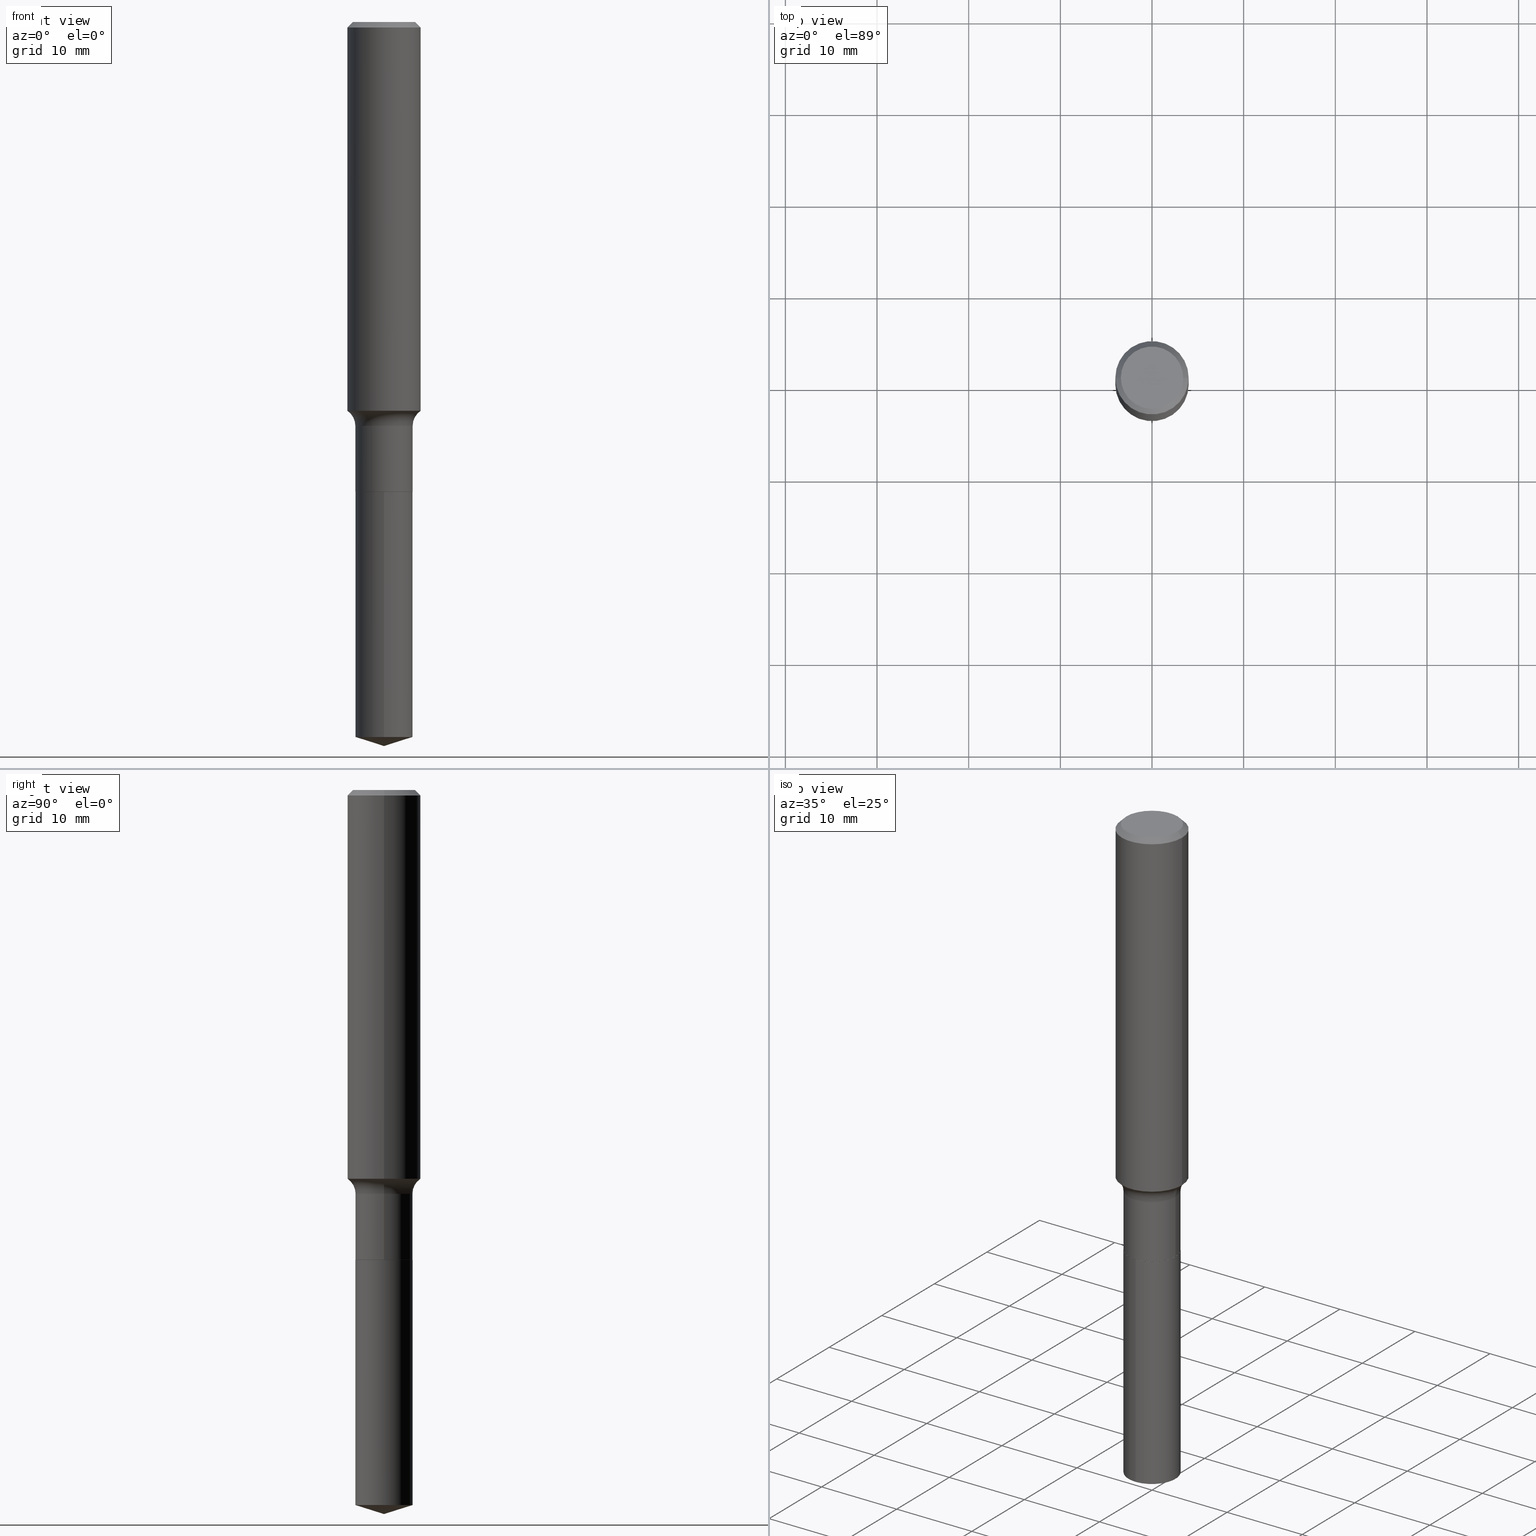
[diagram: canonical four-view strip — front | top / right | iso, engineering-drawing reading convention]
A machine part, canonical four-view strip (front | top / right | iso — engineering-drawing reading convention). The complete STEP part file that produces these views, byte-faithful:
ISO-10303-21;
HEADER;
FILE_DESCRIPTION (( 'STEP AP203' ),
    '1' );
FILE_NAME ('63174.STEP',
    '2024-04-19T14:57:04',
    ( '' ),
    ( '' ),
    'SwSTEP 2.0',
    'SolidWorks 2023',
    '' );
FILE_SCHEMA (( 'CONFIG_CONTROL_DESIGN' ));
ENDSEC;

DATA;
#1 = SECURITY_CLASSIFICATION_LEVEL ( 'unclassified' ) ;
#2 = DIRECTION ( 'NONE',  ( -2.445762720344131298E-29, 3.491060437038909906E-15, 1.000000000000000000 ) ) ;
#3 = ORIENTED_EDGE ( 'NONE', *, *, #134, .F. ) ;
#4 = AXIS2_PLACEMENT_3D ( 'NONE', #321, #326, #135 ) ;
#5 = AXIS2_PLACEMENT_3D ( 'NONE', #199, #396, #386 ) ;
#6 = LINE ( 'NONE', #317, #272 ) ;
#7 = DIRECTION ( 'NONE',  ( 1.000000000000000000, -6.982962677686267499E-15, 4.883557194083112901E-29 ) ) ;
#8 = FACE_OUTER_BOUND ( 'NONE', #40, .T. ) ;
#9 = PERSON_AND_ORGANIZATION_ROLE ( 'creator' ) ;
#10 = DIRECTION ( 'NONE',  ( 1.000000000000000000, -6.982962677686268288E-15, 0.000000000000000000 ) ) ;
#11 = ADVANCED_FACE ( 'NONE', ( #363 ), #353, .T. ) ;
#12 = DIRECTION ( 'NONE',  ( 1.000000000000000000, -6.982962677686265922E-15, 0.000000000000000000 ) ) ;
#13 = AXIS2_PLACEMENT_3D ( 'NONE', #312, #407, #461 ) ;
#14 = VECTOR ( 'NONE', #159, 39.37007874015748143 ) ;
#15 = EDGE_CURVE ( 'NONE', #373, #303, #200, .T. ) ;
#16 = DIRECTION ( 'NONE',  ( -1.000000000000000000, 6.982962677686265922E-15, 0.000000000000000000 ) ) ;
#17 = EDGE_CURVE ( 'NONE', #357, #298, #6, .T. ) ;
#18 = AXIS2_PLACEMENT_3D ( 'NONE', #393, #194, #434 ) ;
#19 = AXIS2_PLACEMENT_3D ( 'NONE', #115, #356, #325 ) ;
#20 = CARTESIAN_POINT ( 'NONE',  ( -0.2010499999999999510, -4.628126508245524798E-15, -1.734700000000000131 ) ) ;
#21 = ORIENTED_EDGE ( 'NONE', *, *, #136, .T. ) ;
#22 = CARTESIAN_POINT ( 'NONE',  ( -1.002970424325032604E-46, 1.431975951230895391E-32, 4.101342130344482109E-18 ) ) ;
#23 = EDGE_CURVE ( 'NONE', #424, #284, #442, .T. ) ;
#24 = DIRECTION ( 'NONE',  ( 1.000000000000000000, -6.982962677686265922E-15, 4.876176775795935793E-29 ) ) ;
#25 = ORIENTED_EDGE ( 'NONE', *, *, #254, .F. ) ;
#26 = CARTESIAN_POINT ( 'NONE',  ( -0.1230500000000000482, -5.675521581249995942E-15, -2.017199999999999882 ) ) ;
#27 = CIRCLE ( 'NONE', #138, 0.1230500000000000344 ) ;
#28 = CC_DESIGN_APPROVAL ( #473, ( #239 ) ) ;
#29 = ORIENTED_EDGE ( 'NONE', *, *, #433, .F. ) ;
#30 = LINE ( 'NONE', #470, #371 ) ;
#31 = DIRECTION ( 'NONE',  ( -2.445762720344131298E-29, 3.491060437038909906E-15, 1.000000000000000000 ) ) ;
#32 = CARTESIAN_POINT ( 'NONE',  ( 0.1225500000000000062, -7.900523973534267362E-15, -2.017700000000000049 ) ) ;
#33 = CALENDAR_DATE ( 2024, 19, 4 ) ;
#34 = AXIS2_PLACEMENT_3D ( 'NONE', #248, #469, #39 ) ;
#35 = CYLINDRICAL_SURFACE ( 'NONE', #436, 0.1230500000000000205 ) ;
#36 = ORIENTED_EDGE ( 'NONE', *, *, #163, .F. ) ;
#37 = CARTESIAN_POINT ( 'NONE',  ( 7.511328664010520263E-29, -1.072330095178513026E-14, -3.071402484028441737 ) ) ;
#38 = APPROVAL_ROLE ( '' ) ;
#39 = DIRECTION ( 'NONE',  ( 1.000000000000000000, -6.982962677686265922E-15, 0.000000000000000000 ) ) ;
#40 = EDGE_LOOP ( 'NONE', ( #468, #376, #415, #450 ) ) ;
#41 = ADVANCED_FACE ( 'NONE', ( #8 ), #147, .T. ) ;
#42 = ORIENTED_EDGE ( 'NONE', *, *, #15, .F. ) ;
#43 = VECTOR ( 'NONE', #391, 39.37007874015748143 ) ;
#44 = AXIS2_PLACEMENT_3D ( 'NONE', #78, #84, #233 ) ;
#45 = LOCAL_TIME ( 10, 57, 4.000000000000000000, #201 ) ;
#46 = APPLICATION_CONTEXT ( 'configuration controlled 3d designs of mechanical parts and assemblies' ) ;
#47 = EDGE_LOOP ( 'NONE', ( #475, #305 ) ) ;
#48 = CALENDAR_DATE ( 2024, 19, 4 ) ;
#49 = ORIENTED_EDGE ( 'NONE', *, *, #278, .T. ) ;
#50 = DIRECTION ( 'NONE',  ( -2.445468806185136597E-29, 3.491481338843145583E-15, 1.000000000000000000 ) ) ;
#51 = CYLINDRICAL_SURFACE ( 'NONE', #366, 0.1230500000000000066 ) ;
#52 = CIRCLE ( 'NONE', #399, 0.1230500000000000066 ) ;
#53 = CC_DESIGN_SECURITY_CLASSIFICATION ( #406, ( #467 ) ) ;
#54 = CARTESIAN_POINT ( 'NONE',  ( 5.777420054612416725E-31, -8.248624663016976606E-17, -0.02362500000000012507 ) ) ;
#55 = AXIS2_PLACEMENT_3D ( 'NONE', #188, #31, #336 ) ;
#56 = AXIS2_PLACEMENT_3D ( 'NONE', #37, #360, #425 ) ;
#57 = CARTESIAN_POINT ( 'NONE',  ( 0.1575000000000001676, -6.930555181286525277E-15, -1.669989896461217427 ) ) ;
#58 = CARTESIAN_POINT ( 'NONE',  ( 0.1225500000000000062, -7.900523973534267362E-15, -2.017700000000000049 ) ) ;
#59 = PRODUCT ( '63174', '63174', '', ( #358 ) ) ;
#60 = ORIENTED_EDGE ( 'NONE', *, *, #99, .F. ) ;
#61 = FACE_OUTER_BOUND ( 'NONE', #47, .T. ) ;
#62 = ORIENTED_EDGE ( 'NONE', *, *, #259, .T. ) ;
#63 = DIRECTION ( 'NONE',  ( -2.445468806185136597E-29, 3.491481338843145583E-15, 1.000000000000000000 ) ) ;
#64 = DIRECTION ( 'NONE',  ( 1.000000000000000000, -6.982962677686266711E-15, 4.876176775795935793E-29 ) ) ;
#65 = VECTOR ( 'NONE', #302, 39.37007874015748143 ) ;
#66 = ORIENTED_EDGE ( 'NONE', *, *, #219, .T. ) ;
#67 = DIRECTION ( 'NONE',  ( -1.000000000000000000, 7.105427357601005014E-15, 0.000000000000000000 ) ) ;
#68 = CONICAL_SURFACE ( 'NONE', #109, 0.1575000000000000011, 0.7853981633974453924 ) ;
#69 = APPROVAL_STATUS ( 'not_yet_approved' ) ;
#70 = ADVANCED_FACE ( 'NONE', ( #465 ), #129, .T. ) ;
#71 = ORIENTED_EDGE ( 'NONE', *, *, #219, .F. ) ;
#72 = PERSON_AND_ORGANIZATION ( #257, #378 ) ;
#73 = CARTESIAN_POINT ( 'NONE',  ( 4.934222410239750967E-29, -7.044761897383814758E-15, -2.017700000000000049 ) ) ;
#74 = ORIENTED_EDGE ( 'NONE', *, *, #211, .F. ) ;
#75 = PERSON_AND_ORGANIZATION ( #257, #378 ) ;
#76 = CARTESIAN_POINT ( 'NONE',  ( 8.743228363528783660E-16, 0.1230499999999929567, -2.017700000000000937 ) ) ;
#77 = ORIENTED_EDGE ( 'NONE', *, *, #410, .T. ) ;
#78 = CARTESIAN_POINT ( 'NONE',  ( 0.000000000000000000, 0.000000000000000000, 0.000000000000000000 ) ) ;
#79 = TOROIDAL_SURFACE ( 'NONE', #273, 0.2010499999999999510, 0.07799999999999993050 ) ;
#80 = PERSON_AND_ORGANIZATION_ROLE ( 'design_supplier' ) ;
#81 = CARTESIAN_POINT ( 'NONE',  ( 4.083908198440252692E-29, -5.830738559550937008E-15, -1.669989896461217427 ) ) ;
#82 = ADVANCED_FACE ( 'NONE', ( #443 ), #419, .F. ) ;
#83 = ORIENTED_EDGE ( 'NONE', *, *, #108, .T. ) ;
#84 = DIRECTION ( 'NONE',  ( 0.000000000000000000, 0.000000000000000000, 1.000000000000000000 ) ) ;
#85 = EDGE_CURVE ( 'NONE', #459, #357, #217, .T. ) ;
#86 = DATE_AND_TIME ( #343, #169 ) ;
#87 = ORIENTED_EDGE ( 'NONE', *, *, #316, .F. ) ;
#88 = LENGTH_MEASURE_WITH_UNIT ( LENGTH_MEASURE( 0.02539999999999999897 ), #244 );
#89 = DIRECTION ( 'NONE',  ( -2.445468806185136877E-29, 3.491481338843145188E-15, 1.000000000000000000 ) ) ;
#90 = CARTESIAN_POINT ( 'NONE',  ( -0.1575000000000000011, -1.837507594268394415E-15, -0.02362500000000012507 ) ) ;
#91 = CLOSED_SHELL ( 'NONE', ( #41, #311, #11, #440, #98, #170, #192, #368, #301, #341, #82, #490 ) ) ;
#92 = AXIS2_PLACEMENT_3D ( 'NONE', #224, #105, #479 ) ;
#93 = ORIENTED_EDGE ( 'NONE', *, *, #372, .T. ) ;
#94 = CARTESIAN_POINT ( 'NONE',  ( -8.592535574892198803E-16, -0.1230500000000107202, -3.071402484028441293 ) ) ;
#95 = DIRECTION ( 'NONE',  ( -6.982962677686266711E-15, -1.000000000000000000, 4.440224288767595162E-15 ) ) ;
#96 = CARTESIAN_POINT ( 'NONE',  ( -0.1230500000000000066, -5.675521581249995942E-15, -1.734700000000000131 ) ) ;
#97 = VECTOR ( 'NONE', #297, 39.37007874015748143 ) ;
#98 = ADVANCED_FACE ( 'NONE', ( #412 ), #375, .T. ) ;
#99 = EDGE_CURVE ( 'NONE', #131, #161, #320, .T. ) ;
#100 = CIRCLE ( 'NONE', #445, 0.1225500000000000062 ) ;
#101 = CIRCLE ( 'NONE', #167, 0.1575000000000000011 ) ;
#102 = CARTESIAN_POINT ( 'NONE',  ( 0.000000000000000000, 0.000000000000000000, 0.000000000000000000 ) ) ;
#103 = APPROVAL ( #225, 'UNSPECIFIED' ) ;
#104 = ORIENTED_EDGE ( 'NONE', *, *, #15, .T. ) ;
#105 = DIRECTION ( 'NONE',  ( 2.445762720344130738E-29, -3.491060437038910301E-15, -1.000000000000000000 ) ) ;
#106 = LINE ( 'NONE', #185, #346 ) ;
#107 = CYLINDRICAL_SURFACE ( 'NONE', #388, 0.1575000000000000844 ) ;
#108 = EDGE_CURVE ( 'NONE', #424, #161, #478, .T. ) ;
#109 = AXIS2_PLACEMENT_3D ( 'NONE', #54, #292, #411 ) ;
#110 = ORIENTED_EDGE ( 'NONE', *, *, #405, .F. ) ;
#111 = FACE_OUTER_BOUND ( 'NONE', #127, .T. ) ;
#112 = DATE_AND_TIME ( #33, #150 ) ;
#113 = EDGE_LOOP ( 'NONE', ( #296, #488, #455, #413 ) ) ;
#114 = APPROVAL_ROLE ( '' ) ;
#115 = CARTESIAN_POINT ( 'NONE',  ( 4.932999675836657605E-29, -7.043016156714394043E-15, -2.017199999999999882 ) ) ;
#116 = VERTEX_POINT ( 'NONE', #448 ) ;
#117 = EDGE_CURVE ( 'NONE', #338, #284, #106, .T. ) ;
#118 = APPROVAL_DATE_TIME ( #86, #486 ) ;
#119 = CARTESIAN_POINT ( 'NONE',  ( 5.777420054612416725E-31, -8.248624663016976606E-17, -0.02362500000000012507 ) ) ;
#120 = ORIENTED_EDGE ( 'NONE', *, *, #433, .T. ) ;
#121 = CIRCLE ( 'NONE', #56, 0.1230500000000000066 ) ;
#122 = CC_DESIGN_PERSON_AND_ORGANIZATION_ASSIGNMENT ( #237, #463, ( #59 ) ) ;
#123 = APPROVAL_PERSON_ORGANIZATION ( #418, #103, #38 ) ;
#124 = CARTESIAN_POINT ( 'NONE',  ( 4.242154738089357054E-29, -6.056672678491205084E-15, -1.734700000000000131 ) ) ;
#125 = ORIENTED_EDGE ( 'NONE', *, *, #278, .F. ) ;
#126 = APPLICATION_PROTOCOL_DEFINITION ( 'international standard', 'config_control_design', 1994, #46 ) ;
#127 = EDGE_LOOP ( 'NONE', ( #152, #462 ) ) ;
#128 = CALENDAR_DATE ( 2024, 19, 4 ) ;
#129 = CYLINDRICAL_SURFACE ( 'NONE', #4, 0.1230500000000000066 ) ;
#130 = AXIS2_PLACEMENT_3D ( 'NONE', #22, #334, #476 ) ;
#131 = VERTEX_POINT ( 'NONE', #482 ) ;
#132 = DIRECTION ( 'NONE',  ( 1.000000000000000000, -6.982962677686263555E-15, 0.000000000000000000 ) ) ;
#133 = FACE_OUTER_BOUND ( 'NONE', #385, .T. ) ;
#134 = EDGE_CURVE ( 'NONE', #333, #222, #414, .T. ) ;
#135 = DIRECTION ( 'NONE',  ( -6.982962677686266711E-15, -1.000000000000000000, 4.440224288767595162E-15 ) ) ;
#136 = EDGE_CURVE ( 'NONE', #243, #459, #100, .T. ) ;
#137 = AXIS2_PLACEMENT_3D ( 'NONE', #179, #383, #324 ) ;
#138 = AXIS2_PLACEMENT_3D ( 'NONE', #140, #63, #377 ) ;
#139 = ORIENTED_EDGE ( 'NONE', *, *, #253, .F. ) ;
#140 = CARTESIAN_POINT ( 'NONE',  ( 4.932999675836657605E-29, -7.043016156714394043E-15, -2.017199999999999882 ) ) ;
#141 = CARTESIAN_POINT ( 'NONE',  ( 4.934222410239750967E-29, -7.044761897383814758E-15, -2.017700000000000049 ) ) ;
#142 = ORIENTED_EDGE ( 'NONE', *, *, #331, .F. ) ;
#143 = PLANE ( 'NONE',  #328 ) ;
#144 = PRODUCT_RELATED_PRODUCT_CATEGORY ( 'detail', '', ( #59 ) ) ;
#145 = ORIENTED_EDGE ( 'NONE', *, *, #422, .T. ) ;
#146 = CARTESIAN_POINT ( 'NONE',  ( 0.1575000000000000844, -1.099816621735587677E-15, 7.679978421878603638E-30 ) ) ;
#147 = CONICAL_SURFACE ( 'NONE', #250, 0.1225500000000000062, 0.7853981633973118326 ) ;
#148 = CIRCLE ( 'NONE', #485, 0.1575000000000001954 ) ;
#149 = FACE_OUTER_BOUND ( 'NONE', #483, .T. ) ;
#150 = LOCAL_TIME ( 10, 57, 4.000000000000000000, #430 ) ;
#151 = CARTESIAN_POINT ( 'NONE',  ( 4.934222410239750967E-29, -7.044761897383814758E-15, -2.017700000000000049 ) ) ;
#152 = ORIENTED_EDGE ( 'NONE', *, *, #99, .T. ) ;
#153 = DIRECTION ( 'NONE',  ( 1.000000000000000000, -6.982962677686268288E-15, 0.000000000000000000 ) ) ;
#154 = DATE_AND_TIME ( #277, #286 ) ;
#155 = LINE ( 'NONE', #308, #203 ) ;
#156 = ORIENTED_EDGE ( 'NONE', *, *, #316, .T. ) ;
#157 = CARTESIAN_POINT ( 'NONE',  ( -0.1575000000000000844, 1.119104808822158392E-15, -7.747322767151481189E-30 ) ) ;
#158 = ORIENTED_EDGE ( 'NONE', *, *, #259, .F. ) ;
#159 = DIRECTION ( 'NONE',  ( 0.7071067811865454633, -7.319954787623248157E-15, -0.7071067811865495711 ) ) ;
#160 =( GEOMETRIC_REPRESENTATION_CONTEXT ( 3 ) GLOBAL_UNCERTAINTY_ASSIGNED_CONTEXT ( ( #208 ) ) GLOBAL_UNIT_ASSIGNED_CONTEXT ( ( #306, #162, #283 ) ) REPRESENTATION_CONTEXT ( 'NONE', 'WORKASPACE' ) );
#161 = VERTEX_POINT ( 'NONE', #76 ) ;
#162 =( NAMED_UNIT ( * ) PLANE_ANGLE_UNIT ( ) SI_UNIT ( $, .RADIAN. ) );
#163 = EDGE_CURVE ( 'NONE', #333, #298, #230, .T. ) ;
#164 = ORIENTED_EDGE ( 'NONE', *, *, #355, .F. ) ;
#165 = COORDINATED_UNIVERSAL_TIME_OFFSET ( 5, 0, .BEHIND. ) ;
#166 = EDGE_LOOP ( 'NONE', ( #240, #104, #274, #223 ) ) ;
#167 = AXIS2_PLACEMENT_3D ( 'NONE', #119, #271, #428 ) ;
#168 = DIRECTION ( 'NONE',  ( -2.445762720344131298E-29, 3.491060437038909906E-15, 1.000000000000000000 ) ) ;
#169 = LOCAL_TIME ( 10, 57, 4.000000000000000000, #351 ) ;
#170 = ADVANCED_FACE ( 'NONE', ( #133 ), #35, .T. ) ;
#171 = CARTESIAN_POINT ( 'NONE',  ( 7.606811212814317629E-29, -1.085789617127841761E-14, -3.110199999999999854 ) ) ;
#172 = DIRECTION ( 'NONE',  ( -6.982962677686266711E-15, -1.000000000000000000, 3.500519750498693388E-15 ) ) ;
#173 = PRODUCT_DEFINITION_SHAPE ( 'NONE', 'NONE',  #239 ) ;
#174 = CONICAL_SURFACE ( 'NONE', #202, 0.1575000000000000011, 0.7853981633974453924 ) ;
#175 = DESIGN_CONTEXT ( 'detailed design', #46, 'design' ) ;
#176 = ADVANCED_FACE ( 'NONE', ( #487 ), #245, .T. ) ;
#177 = CARTESIAN_POINT ( 'NONE',  ( -5.014852121625163022E-47, 7.159879756154476955E-33, 2.050671065172241055E-18 ) ) ;
#178 = EDGE_LOOP ( 'NONE', ( #62, #66, #190, #3 ) ) ;
#179 = CARTESIAN_POINT ( 'NONE',  ( -1.002970424325032604E-46, 1.431975951230895391E-32, 4.101342130344482109E-18 ) ) ;
#180 = CIRCLE ( 'NONE', #19, 0.1230500000000000344 ) ;
#181 = CARTESIAN_POINT ( 'NONE',  ( 0.000000000000000000, 0.000000000000000000, 0.000000000000000000 ) ) ;
#182 = EDGE_LOOP ( 'NONE', ( #87, #158, #226, #246 ) ) ;
#183 = FACE_OUTER_BOUND ( 'NONE', #431, .T. ) ;
#184 = VERTEX_POINT ( 'NONE', #439 ) ;
#185 = CARTESIAN_POINT ( 'NONE',  ( 7.605625151617110741E-29, -1.085959467841923256E-14, -3.110199999999999854 ) ) ;
#186 = CARTESIAN_POINT ( 'NONE',  ( -0.1225500000000000062, -6.173991774709812430E-15, -2.017700000000000049 ) ) ;
#187 = COORDINATED_UNIVERSAL_TIME_OFFSET ( 5, 0, .BEHIND. ) ;
#188 = CARTESIAN_POINT ( 'NONE',  ( 4.934222410239750967E-29, -7.044761897383814758E-15, -2.017700000000000049 ) ) ;
#189 = CIRCLE ( 'NONE', #290, 0.1225500000000000062 ) ;
#190 = ORIENTED_EDGE ( 'NONE', *, *, #480, .F. ) ;
#191 = DIRECTION ( 'NONE',  ( 1.000000000000000000, -6.982962677686263555E-15, 0.000000000000000000 ) ) ;
#192 = ADVANCED_FACE ( 'NONE', ( #352 ), #472, .F. ) ;
#193 = DIRECTION ( 'NONE',  ( 1.000000000000000000, -6.982962677686266711E-15, 4.876176775795935793E-29 ) ) ;
#194 = DIRECTION ( 'NONE',  ( -2.445468806185136597E-29, 3.491481338843145583E-15, 1.000000000000000000 ) ) ;
#195 = APPLICATION_PROTOCOL_DEFINITION ( 'international standard', 'config_control_design', 1994, #238 ) ;
#196 = PERSON_AND_ORGANIZATION_ROLE ( 'classification_officer' ) ;
#197 = CARTESIAN_POINT ( 'NONE',  ( 4.242154738089357054E-29, -6.056672678491205084E-15, -1.734700000000000131 ) ) ;
#198 = ORIENTED_EDGE ( 'NONE', *, *, #369, .F. ) ;
#199 = CARTESIAN_POINT ( 'NONE',  ( 5.777420054612416725E-31, -8.248624663016976606E-17, -0.02362500000000012507 ) ) ;
#200 = LINE ( 'NONE', #491, #370 ) ;
#201 = COORDINATED_UNIVERSAL_TIME_OFFSET ( 5, 0, .BEHIND. ) ;
#202 = AXIS2_PLACEMENT_3D ( 'NONE', #288, #212, #16 ) ;
#203 = VECTOR ( 'NONE', #458, 39.37007874015748143 ) ;
#204 = DIRECTION ( 'NONE',  ( -2.445762720344131298E-29, 3.491060437038909906E-15, 1.000000000000000000 ) ) ;
#205 = PERSON_AND_ORGANIZATION ( #257, #378 ) ;
#206 = EDGE_LOOP ( 'NONE', ( #359, #279, #464, #74 ) ) ;
#207 = FACE_OUTER_BOUND ( 'NONE', #421, .T. ) ;
#208 = UNCERTAINTY_MEASURE_WITH_UNIT (LENGTH_MEASURE( 1.000000000000000082E-05 ), #306, 'distance_accuracy_value', 'NONE');
#209 = CIRCLE ( 'NONE', #408, 0.1230500000000000066 ) ;
#210 = LINE ( 'NONE', #157, #43 ) ;
#211 = EDGE_CURVE ( 'NONE', #161, #131, #52, .T. ) ;
#212 = DIRECTION ( 'NONE',  ( 2.445468806185136597E-29, -3.491481338843145583E-15, -1.000000000000000000 ) ) ;
#213 = VECTOR ( 'NONE', #258, 39.37007874015748143 ) ;
#214 = CONICAL_SURFACE ( 'NONE', #285, 124.8659371009154597, 1.265363707695892570 ) ;
#215 = DIRECTION ( 'NONE',  ( 1.000000000000000000, -6.982962677686268288E-15, 0.000000000000000000 ) ) ;
#216 = DIRECTION ( 'NONE',  ( 2.438088387897960049E-29, -3.491481338843145188E-15, -1.000000000000000000 ) ) ;
#217 = LINE ( 'NONE', #58, #213 ) ;
#218 = DIRECTION ( 'NONE',  ( -1.000000000000000000, 6.982962677686265922E-15, -4.876176775795935793E-29 ) ) ;
#219 = EDGE_CURVE ( 'NONE', #116, #429, #210, .T. ) ;
#220 = CC_DESIGN_PERSON_AND_ORGANIZATION_ASSIGNMENT ( #205, #9, ( #239 ) ) ;
#221 = APPROVAL_PERSON_ORGANIZATION ( #266, #486, #114 ) ;
#222 = VERTEX_POINT ( 'NONE', #404 ) ;
#223 = ORIENTED_EDGE ( 'NONE', *, *, #17, .F. ) ;
#224 = CARTESIAN_POINT ( 'NONE',  ( 4.934222410239750967E-29, -7.044761897383814758E-15, -2.017700000000000049 ) ) ;
#225 = APPROVAL_STATUS ( 'not_yet_approved' ) ;
#226 = ORIENTED_EDGE ( 'NONE', *, *, #163, .T. ) ;
#227 = DIRECTION ( 'NONE',  ( -6.982962677686266711E-15, -1.000000000000000000, 3.500519750498693388E-15 ) ) ;
#228 = CARTESIAN_POINT ( 'NONE',  ( 0.000000000000000000, 0.000000000000000000, 0.000000000000000000 ) ) ;
#229 = EDGE_CURVE ( 'NONE', #284, #131, #155, .T. ) ;
#230 = CIRCLE ( 'NONE', #13, 0.07799999999999993050 ) ;
#231 = VECTOR ( 'NONE', #456, 39.37007874015748143 ) ;
#232 = ORIENTED_EDGE ( 'NONE', *, *, #17, .T. ) ;
#233 = DIRECTION ( 'NONE',  ( 1.000000000000000000, 0.000000000000000000, 0.000000000000000000 ) ) ;
#234 = DIRECTION ( 'NONE',  ( -2.445468806185136597E-29, 3.491481338843145583E-15, 1.000000000000000000 ) ) ;
#235 = ADVANCED_BREP_SHAPE_REPRESENTATION ( '63174', ( #342, #337, #44 ), #160 ) ;
#236 = VERTEX_POINT ( 'NONE', #454 ) ;
#237 = PERSON_AND_ORGANIZATION ( #257, #378 ) ;
#238 = APPLICATION_CONTEXT ( 'configuration controlled 3d designs of mechanical parts and assemblies' ) ;
#239 = PRODUCT_DEFINITION ( 'UNKNOWN', '', #467, #175 ) ;
#240 = ORIENTED_EDGE ( 'NONE', *, *, #242, .T. ) ;
#241 = APPROVAL_ROLE ( '' ) ;
#242 = EDGE_CURVE ( 'NONE', #357, #373, #180, .T. ) ;
#243 = VERTEX_POINT ( 'NONE', #394 ) ;
#244 =( LENGTH_UNIT ( ) NAMED_UNIT ( * ) SI_UNIT ( $, .METRE. ) );
#245 = CONICAL_SURFACE ( 'NONE', #417, 124.8659371009154597, 1.265363707695892570 ) ;
#246 = ORIENTED_EDGE ( 'NONE', *, *, #281, .T. ) ;
#247 = DIRECTION ( 'NONE',  ( 1.000000000000000000, -6.982962677686268288E-15, 0.000000000000000000 ) ) ;
#248 = CARTESIAN_POINT ( 'NONE',  ( 4.083908198440252692E-29, -5.830738559550937008E-15, -1.669989896461217427 ) ) ;
#249 = DIMENSIONAL_EXPONENTS ( 1.000000000000000000, 0.000000000000000000, 0.000000000000000000, 0.000000000000000000, 0.000000000000000000, 0.000000000000000000, 0.000000000000000000 ) ;
#250 = AXIS2_PLACEMENT_3D ( 'NONE', #309, #319, #10 ) ;
#251 = CIRCLE ( 'NONE', #294, 0.1230500000000000066 ) ;
#252 = FACE_OUTER_BOUND ( 'NONE', #299, .T. ) ;
#253 = EDGE_CURVE ( 'NONE', #338, #424, #287, .T. ) ;
#254 = EDGE_CURVE ( 'NONE', #429, #222, #101, .T. ) ;
#255 = AXIS2_PLACEMENT_3D ( 'NONE', #181, #381, #64 ) ;
#256 = PLANE ( 'NONE',  #92 ) ;
#257 = PERSON ( 'UNSPECIFIED', 'UNSPECIFIED', 'UNSPECIFIED', ('UNSPECIFIED'), ('UNSPECIFIED'), ('UNSPECIFIED') ) ;
#258 = DIRECTION ( 'NONE',  ( 0.7071067811864509833, -2.468850131081245741E-15, 0.7071067811866440511 ) ) ;
#259 = EDGE_CURVE ( 'NONE', #333, #116, #148, .T. ) ;
#260 = CC_DESIGN_PERSON_AND_ORGANIZATION_ASSIGNMENT ( #307, #384, ( #467 ) ) ;
#261 = DIRECTION ( 'NONE',  ( -6.659769872151633666E-15, -0.9537169507482269326, 0.3007057995042729526 ) ) ;
#262 = DIRECTION ( 'NONE',  ( 7.105427357601001859E-15, 1.000000000000000000, -3.491481338843145583E-15 ) ) ;
#263 = CIRCLE ( 'NONE', #34, 0.1575000000000001954 ) ;
#264 = DATE_AND_TIME ( #48, #390 ) ;
#265 = ORIENTED_EDGE ( 'NONE', *, *, #410, .F. ) ;
#266 = PERSON_AND_ORGANIZATION ( #257, #378 ) ;
#267 = CARTESIAN_POINT ( 'NONE',  ( 8.743228363528525308E-16, 0.1230499999999929567, -2.017700000000000937 ) ) ;
#268 = CARTESIAN_POINT ( 'NONE',  ( 7.606821613170985544E-29, -1.085789617127841761E-14, -3.110199999999999854 ) ) ;
#269 = ORIENTED_EDGE ( 'NONE', *, *, #253, .T. ) ;
#270 = CARTESIAN_POINT ( 'NONE',  ( 0.1575000000000000011, -1.163014681279185964E-15, -0.02362500000000012507 ) ) ;
#271 = DIRECTION ( 'NONE',  ( -2.445468806185136597E-29, 3.491481338843145583E-15, 1.000000000000000000 ) ) ;
#272 = VECTOR ( 'NONE', #282, 39.37007874015748143 ) ;
#273 = AXIS2_PLACEMENT_3D ( 'NONE', #354, #345, #7 ) ;
#274 = ORIENTED_EDGE ( 'NONE', *, *, #281, .F. ) ;
#275 = DIRECTION ( 'NONE',  ( -2.445762720344131298E-29, 3.491060437038909906E-15, 1.000000000000000000 ) ) ;
#276 = APPROVAL_PERSON_ORGANIZATION ( #280, #473, #241 ) ;
#277 = CALENDAR_DATE ( 2024, 19, 4 ) ;
#278 = EDGE_CURVE ( 'NONE', #116, #333, #263, .T. ) ;
#279 = ORIENTED_EDGE ( 'NONE', *, *, #23, .T. ) ;
#280 = PERSON_AND_ORGANIZATION ( #257, #378 ) ;
#281 = EDGE_CURVE ( 'NONE', #298, #303, #209, .T. ) ;
#282 = DIRECTION ( 'NONE',  ( -2.445468806185136877E-29, 3.491481338843145188E-15, 1.000000000000000000 ) ) ;
#283 =( NAMED_UNIT ( * ) SI_UNIT ( $, .STERADIAN. ) SOLID_ANGLE_UNIT ( ) );
#284 = VERTEX_POINT ( 'NONE', #94 ) ;
#285 = AXIS2_PLACEMENT_3D ( 'NONE', #339, #275, #227 ) ;
#286 = LOCAL_TIME ( 10, 57, 4.000000000000000000, #187 ) ;
#287 = LINE ( 'NONE', #268, #466 ) ;
#288 = CARTESIAN_POINT ( 'NONE',  ( 5.777420054612416725E-31, -8.248624663016976606E-17, -0.02362500000000012507 ) ) ;
#289 = DIRECTION ( 'NONE',  ( -6.982962677686266711E-15, -1.000000000000000000, 4.440224288767595162E-15 ) ) ;
#290 = AXIS2_PLACEMENT_3D ( 'NONE', #444, #330, #215 ) ;
#291 = CC_DESIGN_DATE_AND_TIME_ASSIGNMENT ( #264, #457, ( #239 ) ) ;
#292 = DIRECTION ( 'NONE',  ( 2.445468806185136597E-29, -3.491481338843145583E-15, -1.000000000000000000 ) ) ;
#293 = FACE_OUTER_BOUND ( 'NONE', #453, .T. ) ;
#294 = AXIS2_PLACEMENT_3D ( 'NONE', #350, #318, #191 ) ;
#295 = ADVANCED_FACE ( 'NONE', ( #207 ), #51, .T. ) ;
#296 = ORIENTED_EDGE ( 'NONE', *, *, #422, .F. ) ;
#297 = DIRECTION ( 'NONE',  ( -2.445762720344131298E-29, 3.491060437038910301E-15, 1.000000000000000000 ) ) ;
#298 = VERTEX_POINT ( 'NONE', #323 ) ;
#299 = EDGE_LOOP ( 'NONE', ( #198, #145, #382, #142 ) ) ;
#300 = AXIS2_PLACEMENT_3D ( 'NONE', #124, #304, #471 ) ;
#301 = ADVANCED_FACE ( 'NONE', ( #441 ), #174, .T. ) ;
#302 = DIRECTION ( 'NONE',  ( -2.445468806185136877E-29, 3.491481338843145188E-15, 1.000000000000000000 ) ) ;
#303 = VERTEX_POINT ( 'NONE', #96 ) ;
#304 = DIRECTION ( 'NONE',  ( -2.445468806185136597E-29, 3.491481338843145583E-15, 1.000000000000000000 ) ) ;
#305 = ORIENTED_EDGE ( 'NONE', *, *, #369, .T. ) ;
#306 =( CONVERSION_BASED_UNIT ( 'INCH', #88 ) LENGTH_UNIT ( ) NAMED_UNIT ( #249 ) );
#307 = PERSON_AND_ORGANIZATION ( #257, #378 ) ;
#308 = CARTESIAN_POINT ( 'NONE',  ( -8.592535574892457155E-16, -0.1230500000000070565, -2.017699999999999605 ) ) ;
#309 = CARTESIAN_POINT ( 'NONE',  ( 4.934222410239750967E-29, -7.044761897383814758E-15, -2.017700000000000049 ) ) ;
#310 = FACE_OUTER_BOUND ( 'NONE', #402, .T. ) ;
#311 = ADVANCED_FACE ( 'NONE', ( #252 ), #68, .T. ) ;
#312 = CARTESIAN_POINT ( 'NONE',  ( 0.2010499999999999510, -7.460597324840029530E-15, -1.734700000000000131 ) ) ;
#313 = AXIS2_PLACEMENT_3D ( 'NONE', #492, #489, #153 ) ;
#314 = ORIENTED_EDGE ( 'NONE', *, *, #117, .F. ) ;
#315 = CARTESIAN_POINT ( 'NONE',  ( 8.743228363528783660E-16, 0.1230499999999892652, -3.071402484028442181 ) ) ;
#316 = EDGE_CURVE ( 'NONE', #116, #303, #427, .T. ) ;
#317 = CARTESIAN_POINT ( 'NONE',  ( 0.1230500000000000205, -8.592535574892952166E-16, 6.000135522616899800E-30 ) ) ;
#318 = DIRECTION ( 'NONE',  ( -2.445468806185136597E-29, 3.491481338843145583E-15, 1.000000000000000000 ) ) ;
#319 = DIRECTION ( 'NONE',  ( -2.445468806185136597E-29, 3.491481338843145583E-15, 1.000000000000000000 ) ) ;
#320 = CIRCLE ( 'NONE', #55, 0.1230500000000000066 ) ;
#321 = CARTESIAN_POINT ( 'NONE',  ( 4.934222410239750967E-29, -7.044761897383814758E-15, -2.017700000000000049 ) ) ;
#322 = AXIS2_PLACEMENT_3D ( 'NONE', #20, #262, #67 ) ;
#323 = CARTESIAN_POINT ( 'NONE',  ( 0.1230500000000000066, -6.915926235980499906E-15, -1.734700000000000131 ) ) ;
#324 = DIRECTION ( 'NONE',  ( 1.000000000000000000, -6.982962677686266711E-15, 4.876170806578254279E-29 ) ) ;
#325 = DIRECTION ( 'NONE',  ( 1.000000000000000000, -6.982962677686261977E-15, 0.000000000000000000 ) ) ;
#326 = DIRECTION ( 'NONE',  ( -2.445762720344131298E-29, 3.491060437038909906E-15, 1.000000000000000000 ) ) ;
#327 = ADVANCED_FACE ( 'NONE', ( #111 ), #256, .F. ) ;
#328 = AXIS2_PLACEMENT_3D ( 'NONE', #177, #216, #218 ) ;
#329 = CC_DESIGN_APPROVAL ( #103, ( #467 ) ) ;
#330 = DIRECTION ( 'NONE',  ( -2.445468806185136597E-29, 3.491481338843145583E-15, 1.000000000000000000 ) ) ;
#331 = EDGE_CURVE ( 'NONE', #236, #429, #30, .T. ) ;
#332 = EDGE_CURVE ( 'NONE', #236, #184, #477, .T. ) ;
#333 = VERTEX_POINT ( 'NONE', #57 ) ;
#334 = DIRECTION ( 'NONE',  ( -2.445468806185136597E-29, 3.491481338843145583E-15, 1.000000000000000000 ) ) ;
#335 = CIRCLE ( 'NONE', #5, 0.1575000000000000011 ) ;
#336 = DIRECTION ( 'NONE',  ( -6.982962677686266711E-15, -1.000000000000000000, 4.440224288767595162E-15 ) ) ;
#337 = MANIFOLD_SOLID_BREP ( 'Body-Move/Copy2[2]', #91 ) ;
#338 = VERTEX_POINT ( 'NONE', #171 ) ;
#339 = CARTESIAN_POINT ( 'NONE',  ( -8.868365269747449099E-28, 1.265845788680216436E-13, 36.25987874015748247 ) ) ;
#340 = DIRECTION ( 'NONE',  ( -0.7071067811865454633, 2.468850131082235367E-15, -0.7071067811865495711 ) ) ;
#341 = ADVANCED_FACE ( 'NONE', ( #61 ), #143, .F. ) ;
#342 = MANIFOLD_SOLID_BREP ( 'Body-Move/Copy2[1]', #365 ) ;
#343 = CALENDAR_DATE ( 2024, 19, 4 ) ;
#344 = EDGE_LOOP ( 'NONE', ( #139, #481, #420 ) ) ;
#345 = DIRECTION ( 'NONE',  ( -2.445468806185136597E-29, 3.491481338843145583E-15, 1.000000000000000000 ) ) ;
#346 = VECTOR ( 'NONE', #261, 39.37007874015748854 ) ;
#347 = APPROVAL_DATE_TIME ( #154, #103 ) ;
#348 = DIRECTION ( 'NONE',  ( -2.445468806185136597E-29, 3.491481338843145583E-15, 1.000000000000000000 ) ) ;
#349 = EDGE_LOOP ( 'NONE', ( #164, #397 ) ) ;
#350 = CARTESIAN_POINT ( 'NONE',  ( 4.242154738089357054E-29, -6.056672678491205084E-15, -1.734700000000000131 ) ) ;
#351 = COORDINATED_UNIVERSAL_TIME_OFFSET ( 5, 0, .BEHIND. ) ;
#352 = FACE_OUTER_BOUND ( 'NONE', #182, .T. ) ;
#353 = CYLINDRICAL_SURFACE ( 'NONE', #18, 0.1575000000000000844 ) ;
#354 = CARTESIAN_POINT ( 'NONE',  ( 4.242154738089357054E-29, -6.056672678491205084E-15, -1.734700000000000131 ) ) ;
#355 = EDGE_CURVE ( 'NONE', #459, #243, #189, .T. ) ;
#356 = DIRECTION ( 'NONE',  ( -2.445468806185136597E-29, 3.491481338843145583E-15, 1.000000000000000000 ) ) ;
#357 = VERTEX_POINT ( 'NONE', #474 ) ;
#358 = MECHANICAL_CONTEXT ( 'NONE', #238, 'mechanical' ) ;
#359 = ORIENTED_EDGE ( 'NONE', *, *, #108, .F. ) ;
#360 = DIRECTION ( 'NONE',  ( -2.445762720344131298E-29, 3.491060437038909906E-15, 1.000000000000000000 ) ) ;
#361 = DIRECTION ( 'NONE',  ( -6.982962677686266711E-15, -1.000000000000000000, 4.440224288767595162E-15 ) ) ;
#362 = APPROVAL_DATE_TIME ( #401, #473 ) ;
#363 = FACE_OUTER_BOUND ( 'NONE', #178, .T. ) ;
#364 = CARTESIAN_POINT ( 'NONE',  ( -8.868365269747449099E-28, 1.265845788680216436E-13, 36.25987874015748247 ) ) ;
#365 = CLOSED_SHELL ( 'NONE', ( #295, #392, #176, #70, #327 ) ) ;
#366 = AXIS2_PLACEMENT_3D ( 'NONE', #423, #168, #289 ) ;
#367 = DIRECTION ( 'NONE',  ( 6.776566513254258926E-15, 0.9537169507482290420, 0.3007057995042663467 ) ) ;
#368 = ADVANCED_FACE ( 'NONE', ( #293 ), #107, .T. ) ;
#369 = EDGE_CURVE ( 'NONE', #184, #236, #451, .T. ) ;
#370 = VECTOR ( 'NONE', #89, 39.37007874015748143 ) ;
#371 = VECTOR ( 'NONE', #340, 39.37007874015748143 ) ;
#372 = EDGE_CURVE ( 'NONE', #373, #357, #27, .T. ) ;
#373 = VERTEX_POINT ( 'NONE', #26 ) ;
#374 = DIRECTION ( 'NONE',  ( 1.000000000000000000, -6.982962677686267499E-15, 4.876176775795936353E-29 ) ) ;
#375 = CYLINDRICAL_SURFACE ( 'NONE', #255, 0.1230500000000000205 ) ;
#376 = ORIENTED_EDGE ( 'NONE', *, *, #405, .T. ) ;
#377 = DIRECTION ( 'NONE',  ( 1.000000000000000000, -6.982962677686261977E-15, 0.000000000000000000 ) ) ;
#378 = ORGANIZATION ( 'UNSPECIFIED', 'UNSPECIFIED', '' ) ;
#379 = DATE_TIME_ROLE ( 'classification_date' ) ;
#380 = ORIENTED_EDGE ( 'NONE', *, *, #85, .T. ) ;
#381 = DIRECTION ( 'NONE',  ( -2.445468806185136597E-29, 3.491481338843145583E-15, 1.000000000000000000 ) ) ;
#382 = ORIENTED_EDGE ( 'NONE', *, *, #480, .T. ) ;
#383 = DIRECTION ( 'NONE',  ( -2.445468806185136597E-29, 3.491481338843145583E-15, 1.000000000000000000 ) ) ;
#384 = PERSON_AND_ORGANIZATION_ROLE ( 'creator' ) ;
#385 = EDGE_LOOP ( 'NONE', ( #42, #93, #232, #29 ) ) ;
#386 = DIRECTION ( 'NONE',  ( 1.000000000000000000, -6.982962677686265922E-15, 0.000000000000000000 ) ) ;
#387 = AXIS2_PLACEMENT_3D ( 'NONE', #437, #204, #361 ) ;
#388 = AXIS2_PLACEMENT_3D ( 'NONE', #102, #416, #374 ) ;
#389 = SHAPE_DEFINITION_REPRESENTATION ( #173, #235 ) ;
#390 = LOCAL_TIME ( 10, 57, 4.000000000000000000, #165 ) ;
#391 = DIRECTION ( 'NONE',  ( -2.445468806185136877E-29, 3.491481338843145188E-15, 1.000000000000000000 ) ) ;
#392 = ADVANCED_FACE ( 'NONE', ( #183 ), #214, .T. ) ;
#393 = CARTESIAN_POINT ( 'NONE',  ( 0.000000000000000000, 0.000000000000000000, 0.000000000000000000 ) ) ;
#394 = CARTESIAN_POINT ( 'NONE',  ( -0.1225500000000000062, -6.171342547535699651E-15, -2.017700000000000049 ) ) ;
#395 = ORIENTED_EDGE ( 'NONE', *, *, #229, .F. ) ;
#396 = DIRECTION ( 'NONE',  ( -2.445468806185136597E-29, 3.491481338843145583E-15, 1.000000000000000000 ) ) ;
#397 = ORIENTED_EDGE ( 'NONE', *, *, #136, .F. ) ;
#398 = LINE ( 'NONE', #186, #231 ) ;
#399 = AXIS2_PLACEMENT_3D ( 'NONE', #151, #438, #95 ) ;
#400 = ORIENTED_EDGE ( 'NONE', *, *, #372, .F. ) ;
#401 = DATE_AND_TIME ( #128, #45 ) ;
#402 = EDGE_LOOP ( 'NONE', ( #125, #156, #120, #36 ) ) ;
#403 = DIRECTION ( 'NONE',  ( -2.445468806185136597E-29, 3.491481338843145583E-15, 1.000000000000000000 ) ) ;
#404 = CARTESIAN_POINT ( 'NONE',  ( 0.1575000000000000011, -1.182302868365756679E-15, -0.02362500000000012507 ) ) ;
#405 = EDGE_CURVE ( 'NONE', #243, #373, #398, .T. ) ;
#406 = SECURITY_CLASSIFICATION ( '', '', #1 ) ;
#407 = DIRECTION ( 'NONE',  ( -6.982962677686266711E-15, -1.000000000000000000, 3.491481338843145583E-15 ) ) ;
#408 = AXIS2_PLACEMENT_3D ( 'NONE', #197, #50, #132 ) ;
#409 = CC_DESIGN_PERSON_AND_ORGANIZATION_ASSIGNMENT ( #72, #80, ( #467 ) ) ;
#410 = EDGE_CURVE ( 'NONE', #284, #424, #121, .T. ) ;
#411 = DIRECTION ( 'NONE',  ( -1.000000000000000000, 6.982962677686265922E-15, 0.000000000000000000 ) ) ;
#412 = FACE_OUTER_BOUND ( 'NONE', #166, .T. ) ;
#413 = ORIENTED_EDGE ( 'NONE', *, *, #254, .T. ) ;
#414 = LINE ( 'NONE', #146, #65 ) ;
#415 = ORIENTED_EDGE ( 'NONE', *, *, #242, .F. ) ;
#416 = DIRECTION ( 'NONE',  ( -2.445468806185136597E-29, 3.491481338843145583E-15, 1.000000000000000000 ) ) ;
#417 = AXIS2_PLACEMENT_3D ( 'NONE', #364, #2, #172 ) ;
#418 = PERSON_AND_ORGANIZATION ( #257, #378 ) ;
#419 = PLANE ( 'NONE',  #435 ) ;
#420 = ORIENTED_EDGE ( 'NONE', *, *, #23, .F. ) ;
#421 = EDGE_LOOP ( 'NONE', ( #77, #83, #60, #395 ) ) ;
#422 = EDGE_CURVE ( 'NONE', #184, #222, #484, .T. ) ;
#423 = CARTESIAN_POINT ( 'NONE',  ( 4.934222410239750967E-29, -7.044761897383814758E-15, -2.017700000000000049 ) ) ;
#424 = VERTEX_POINT ( 'NONE', #315 ) ;
#425 = DIRECTION ( 'NONE',  ( -6.982962677686266711E-15, -1.000000000000000000, 4.440224288767595162E-15 ) ) ;
#426 = CC_DESIGN_DATE_AND_TIME_ASSIGNMENT ( #112, #379, ( #406 ) ) ;
#427 = CIRCLE ( 'NONE', #322, 0.07799999999999993050 ) ;
#428 = DIRECTION ( 'NONE',  ( 1.000000000000000000, -6.982962677686265922E-15, 0.000000000000000000 ) ) ;
#429 = VERTEX_POINT ( 'NONE', #90 ) ;
#430 = COORDINATED_UNIVERSAL_TIME_OFFSET ( 5, 0, .BEHIND. ) ;
#431 = EDGE_LOOP ( 'NONE', ( #314, #269, #265 ) ) ;
#432 = APPROVAL_STATUS ( 'not_yet_approved' ) ;
#433 = EDGE_CURVE ( 'NONE', #303, #298, #251, .T. ) ;
#434 = DIRECTION ( 'NONE',  ( 1.000000000000000000, -6.982962677686267499E-15, 4.876176775795936353E-29 ) ) ;
#435 = AXIS2_PLACEMENT_3D ( 'NONE', #141, #452, #24 ) ;
#436 = AXIS2_PLACEMENT_3D ( 'NONE', #228, #403, #193 ) ;
#437 = CARTESIAN_POINT ( 'NONE',  ( 7.511328664010520263E-29, -1.072330095178513026E-14, -3.071402484028441737 ) ) ;
#438 = DIRECTION ( 'NONE',  ( -2.445762720344131298E-29, 3.491060437038909906E-15, 1.000000000000000000 ) ) ;
#439 = CARTESIAN_POINT ( 'NONE',  ( 0.1338749999999999940, -1.040731925365424925E-15, 4.101342130351390035E-18 ) ) ;
#440 = ADVANCED_FACE ( 'NONE', ( #310 ), #79, .F. ) ;
#441 = FACE_OUTER_BOUND ( 'NONE', #113, .T. ) ;
#442 = CIRCLE ( 'NONE', #387, 0.1230500000000000066 ) ;
#443 = FACE_OUTER_BOUND ( 'NONE', #349, .T. ) ;
#444 = CARTESIAN_POINT ( 'NONE',  ( 4.934222410239750967E-29, -7.044761897383814758E-15, -2.017700000000000049 ) ) ;
#445 = AXIS2_PLACEMENT_3D ( 'NONE', #73, #348, #247 ) ;
#446 = CC_DESIGN_APPROVAL ( #486, ( #406 ) ) ;
#447 = ORIENTED_EDGE ( 'NONE', *, *, #134, .T. ) ;
#448 = CARTESIAN_POINT ( 'NONE',  ( -0.1575000000000001676, -4.711633750728779404E-15, -1.669989896461217427 ) ) ;
#449 = CC_DESIGN_PERSON_AND_ORGANIZATION_ASSIGNMENT ( #75, #196, ( #406 ) ) ;
#450 = ORIENTED_EDGE ( 'NONE', *, *, #85, .F. ) ;
#451 = CIRCLE ( 'NONE', #130, 0.1338749999999999940 ) ;
#452 = DIRECTION ( 'NONE',  ( -2.438088387897960049E-29, 3.491481338843145188E-15, 1.000000000000000000 ) ) ;
#453 = EDGE_LOOP ( 'NONE', ( #71, #49, #447, #25 ) ) ;
#454 = CARTESIAN_POINT ( 'NONE',  ( -0.1338749999999999940, 9.760872517903331886E-16, 4.101342130337800673E-18 ) ) ;
#455 = ORIENTED_EDGE ( 'NONE', *, *, #331, .T. ) ;
#456 = DIRECTION ( 'NONE',  ( -0.7071067811864509833, 7.493145998870005484E-15, 0.7071067811866440511 ) ) ;
#457 = DATE_TIME_ROLE ( 'creation_date' ) ;
#458 = DIRECTION ( 'NONE',  ( -2.445762720344131298E-29, 3.491060437038910301E-15, 1.000000000000000000 ) ) ;
#459 = VERTEX_POINT ( 'NONE', #32 ) ;
#460 = CONICAL_SURFACE ( 'NONE', #313, 0.1225500000000000062, 0.7853981633973118326 ) ;
#461 = DIRECTION ( 'NONE',  ( 1.000000000000000000, -6.982962677686264344E-15, 0.000000000000000000 ) ) ;
#462 = ORIENTED_EDGE ( 'NONE', *, *, #211, .T. ) ;
#463 = PERSON_AND_ORGANIZATION_ROLE ( 'design_owner' ) ;
#464 = ORIENTED_EDGE ( 'NONE', *, *, #229, .T. ) ;
#465 = FACE_OUTER_BOUND ( 'NONE', #206, .T. ) ;
#466 = VECTOR ( 'NONE', #367, 39.37007874015748143 ) ;
#467 = PRODUCT_DEFINITION_FORMATION_WITH_SPECIFIED_SOURCE ( 'ANY', '', #59, .NOT_KNOWN. ) ;
#468 = ORIENTED_EDGE ( 'NONE', *, *, #355, .T. ) ;
#469 = DIRECTION ( 'NONE',  ( -2.445468806185136597E-29, 3.491481338843145583E-15, 1.000000000000000000 ) ) ;
#470 = CARTESIAN_POINT ( 'NONE',  ( -0.1575000000000000011, 1.017330375105417295E-15, -0.02362500000000012507 ) ) ;
#471 = DIRECTION ( 'NONE',  ( 1.000000000000000000, -6.982962677686267499E-15, 4.883557194083112901E-29 ) ) ;
#472 = TOROIDAL_SURFACE ( 'NONE', #300, 0.2010499999999999510, 0.07799999999999993050 ) ;
#473 = APPROVAL ( #432, 'UNSPECIFIED' ) ;
#474 = CARTESIAN_POINT ( 'NONE',  ( 0.1230500000000000344, -7.902269714203688077E-15, -2.017199999999999882 ) ) ;
#475 = ORIENTED_EDGE ( 'NONE', *, *, #332, .T. ) ;
#476 = DIRECTION ( 'NONE',  ( 1.000000000000000000, -6.982962677686266711E-15, 4.876170806578254279E-29 ) ) ;
#477 = CIRCLE ( 'NONE', #137, 0.1338749999999999940 ) ;
#478 = LINE ( 'NONE', #267, #97 ) ;
#479 = DIRECTION ( 'NONE',  ( 6.982962677686265922E-15, 1.000000000000000000, -3.491060437038910301E-15 ) ) ;
#480 = EDGE_CURVE ( 'NONE', #222, #429, #335, .T. ) ;
#481 = ORIENTED_EDGE ( 'NONE', *, *, #117, .T. ) ;
#482 = CARTESIAN_POINT ( 'NONE',  ( -8.592535574892457155E-16, -0.1230500000000070565, -2.017699999999999605 ) ) ;
#483 = EDGE_LOOP ( 'NONE', ( #110, #21, #380, #400 ) ) ;
#484 = LINE ( 'NONE', #270, #14 ) ;
#485 = AXIS2_PLACEMENT_3D ( 'NONE', #81, #234, #12 ) ;
#486 = APPROVAL ( #69, 'UNSPECIFIED' ) ;
#487 = FACE_OUTER_BOUND ( 'NONE', #344, .T. ) ;
#488 = ORIENTED_EDGE ( 'NONE', *, *, #332, .F. ) ;
#489 = DIRECTION ( 'NONE',  ( -2.445468806185136597E-29, 3.491481338843145583E-15, 1.000000000000000000 ) ) ;
#490 = ADVANCED_FACE ( 'NONE', ( #149 ), #460, .T. ) ;
#491 = CARTESIAN_POINT ( 'NONE',  ( -0.1230500000000000205, 8.743228363528034242E-16, -6.052749628558661976E-30 ) ) ;
#492 = CARTESIAN_POINT ( 'NONE',  ( 4.934222410239750967E-29, -7.044761897383814758E-15, -2.017700000000000049 ) ) ;
ENDSEC;
END-ISO-10303-21;
